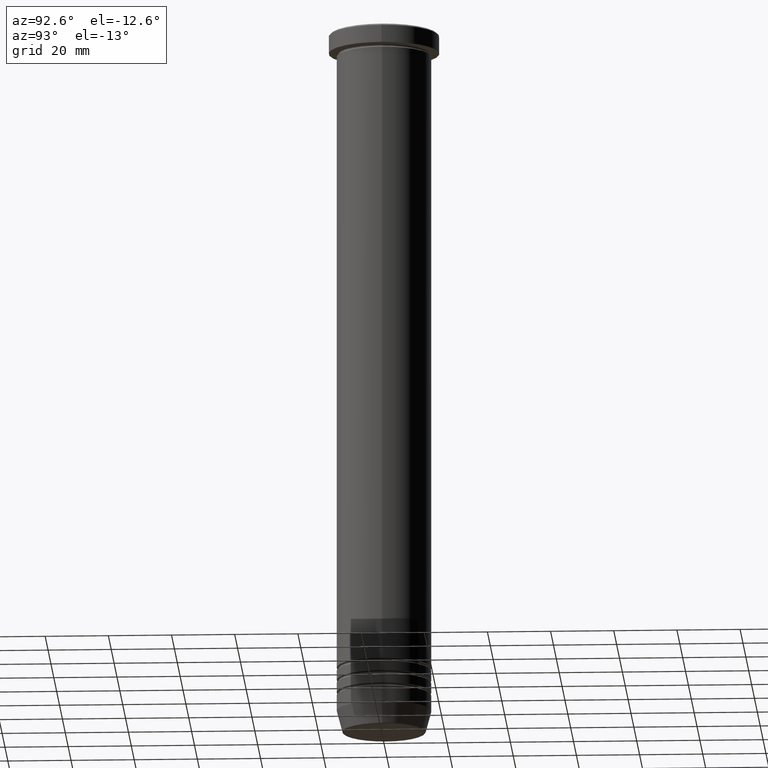
[diagram: clean part render]
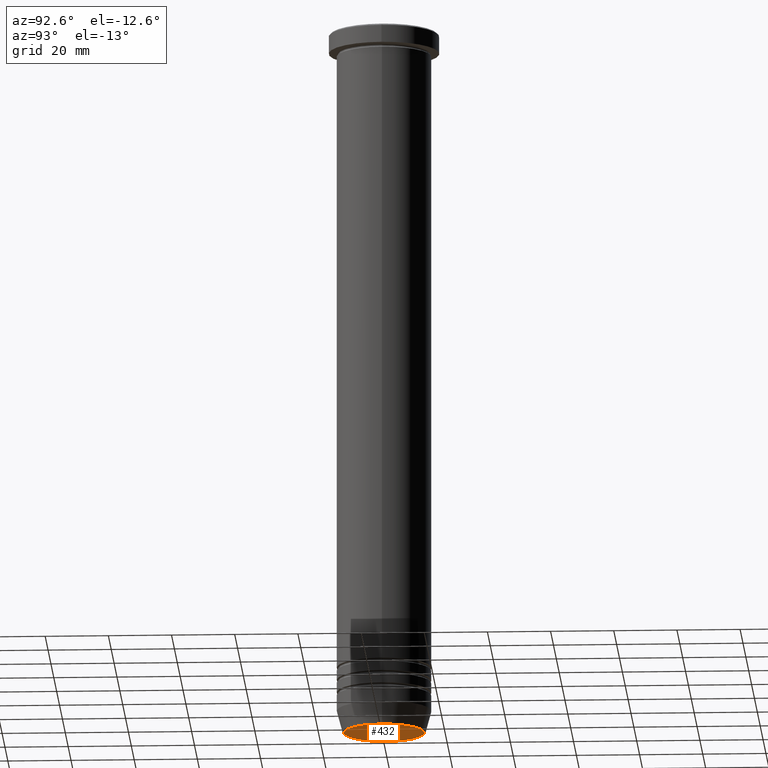
[diagram: same view with one face highlighted and labeled with its STEP entity id]
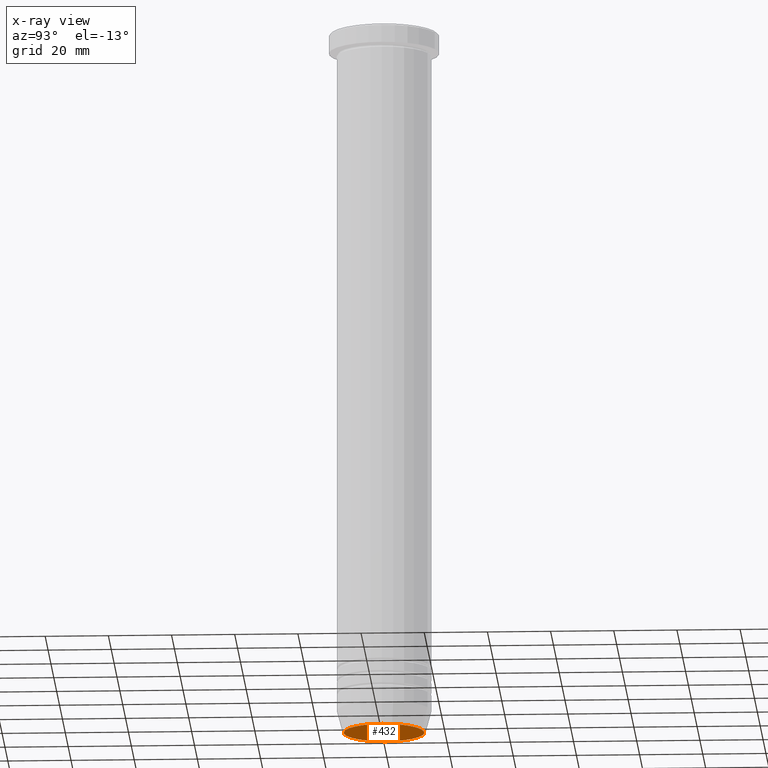
[diagram: x-ray of the same camera — body ghosted, the highlighted face saturated]
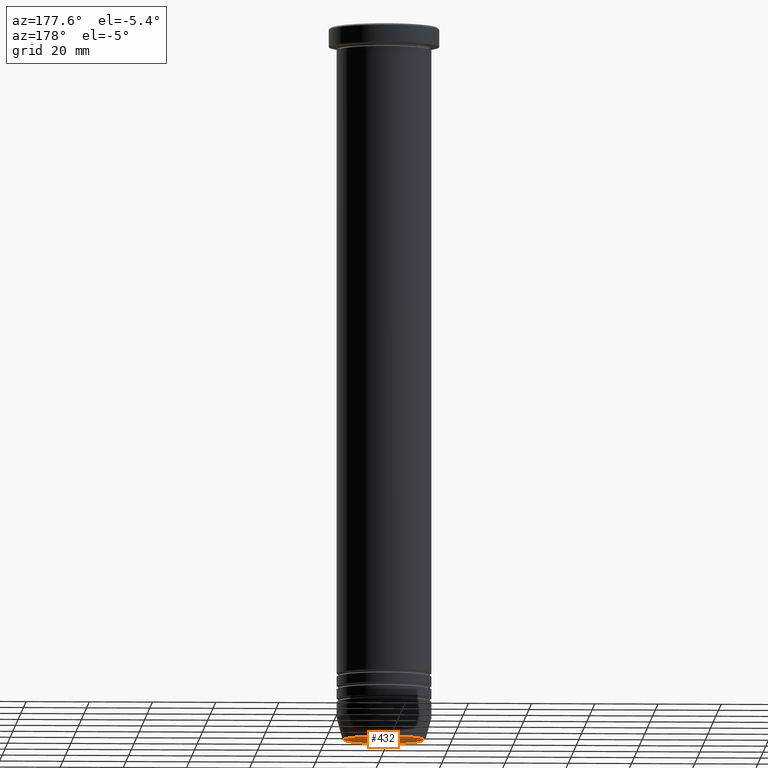
[diagram: same view with one face highlighted and labeled with its STEP entity id]
A machine part, auxiliary view. The second image highlights one B-rep face of the part: STEP entity #432.
The next image is the same camera in x-ray: the body ghosted, the highlighted face saturated — about 0% of this face is hidden behind the body in this view.
A second angle (auxiliary view) of the same face is appended — the face is thin or edge-on in the first view.
In plain terms, the highlighted planar face has unit normal (0, -0, 1).
Its self-contained STEP definition (entity closure, byte-faithful):
#72 = ORIENTED_EDGE ( 'NONE', *, *, #766, .T. ) ;
#103 = EDGE_CURVE ( 'NONE', #652, #739, #276, .T. ) ;
#104 = AXIS2_PLACEMENT_3D ( 'NONE', #756, #1115, #314 ) ;
#159 = CARTESIAN_POINT ( 'NONE',  ( -12.74069215899266361, 1.589857736427681429E-15, -225.9999999999999716 ) ) ;
#169 = AXIS2_PLACEMENT_3D ( 'NONE', #977, #528, #893 ) ;
#206 = CIRCLE ( 'NONE', #169, 12.74069215899266361 ) ;
#212 = EDGE_LOOP ( 'NONE', ( #72, #949 ) ) ;
#276 = CIRCLE ( 'NONE', #104, 12.74069215899266361 ) ;
#314 = DIRECTION ( 'NONE',  ( 1.000000000000000000, 0.000000000000000000, 0.000000000000000000 ) ) ;
#432 = ADVANCED_FACE ( 'NONE', ( #865 ), #779, .F. ) ;
#528 = DIRECTION ( 'NONE',  ( 0.000000000000000000, 0.000000000000000000, -1.000000000000000000 ) ) ;
#556 = CARTESIAN_POINT ( 'NONE',  ( 0.000000000000000000, 2.039036920580342741E-14, -225.9999999999999716 ) ) ;
#652 = VERTEX_POINT ( 'NONE', #159 ) ;
#739 = VERTEX_POINT ( 'NONE', #926 ) ;
#756 = CARTESIAN_POINT ( 'NONE',  ( 0.000000000000000000, 0.000000000000000000, -225.9999999999999716 ) ) ;
#766 = EDGE_CURVE ( 'NONE', #739, #652, #206, .T. ) ;
#779 = PLANE ( 'NONE',  #795 ) ;
#795 = AXIS2_PLACEMENT_3D ( 'NONE', #556, #1079, #1038 ) ;
#865 = FACE_OUTER_BOUND ( 'NONE', #212, .T. ) ;
#893 = DIRECTION ( 'NONE',  ( 1.000000000000000000, 0.000000000000000000, 0.000000000000000000 ) ) ;
#926 = CARTESIAN_POINT ( 'NONE',  ( 12.74069215899266361, 0.000000000000000000, -225.9999999999999716 ) ) ;
#949 = ORIENTED_EDGE ( 'NONE', *, *, #103, .T. ) ;
#977 = CARTESIAN_POINT ( 'NONE',  ( 0.000000000000000000, 0.000000000000000000, -225.9999999999999716 ) ) ;
#1038 = DIRECTION ( 'NONE',  ( 1.000000000000000000, 0.000000000000000000, 0.000000000000000000 ) ) ;
#1079 = DIRECTION ( 'NONE',  ( 0.000000000000000000, -0.000000000000000000, 1.000000000000000000 ) ) ;
#1115 = DIRECTION ( 'NONE',  ( 0.000000000000000000, 0.000000000000000000, -1.000000000000000000 ) ) ;